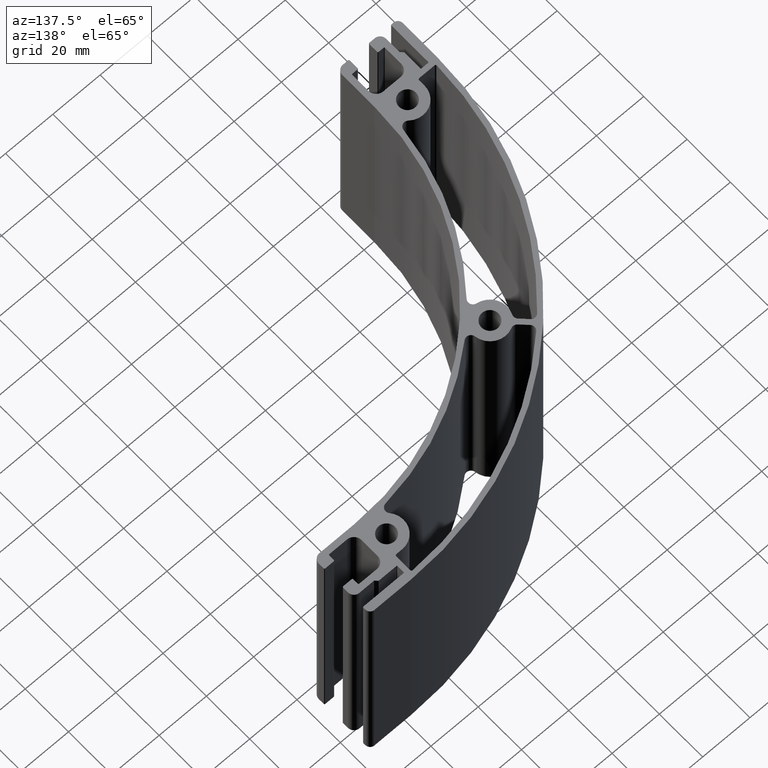
[diagram: clean part render]
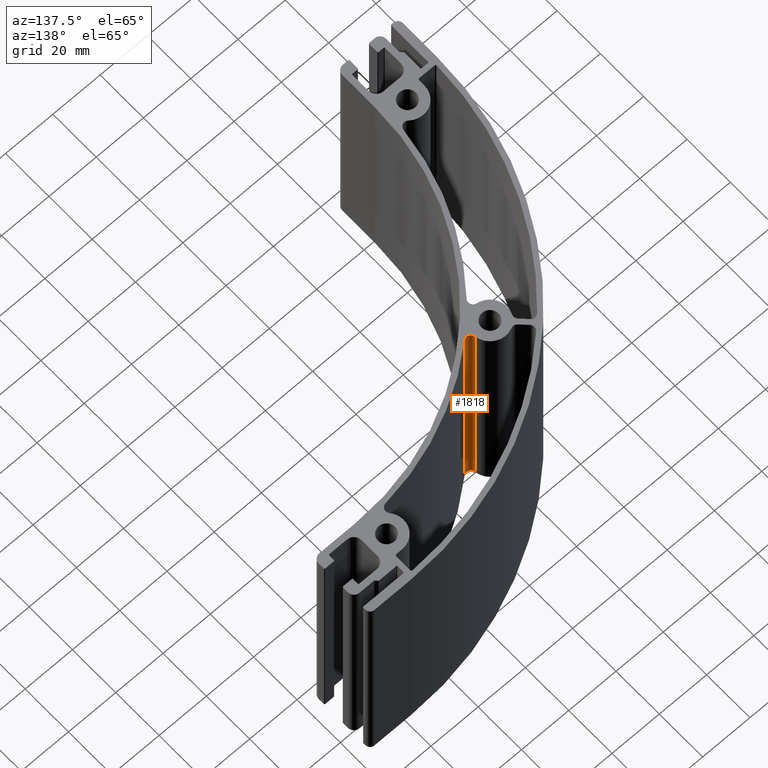
[diagram: same view with one face highlighted and labeled with its STEP entity id]
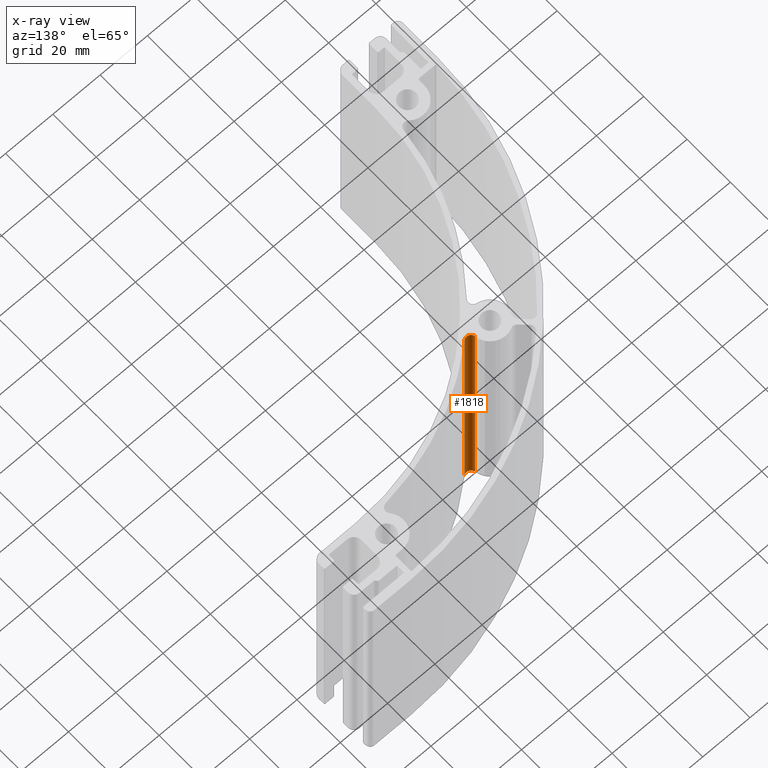
[diagram: x-ray of the same camera — body ghosted, the highlighted face saturated]
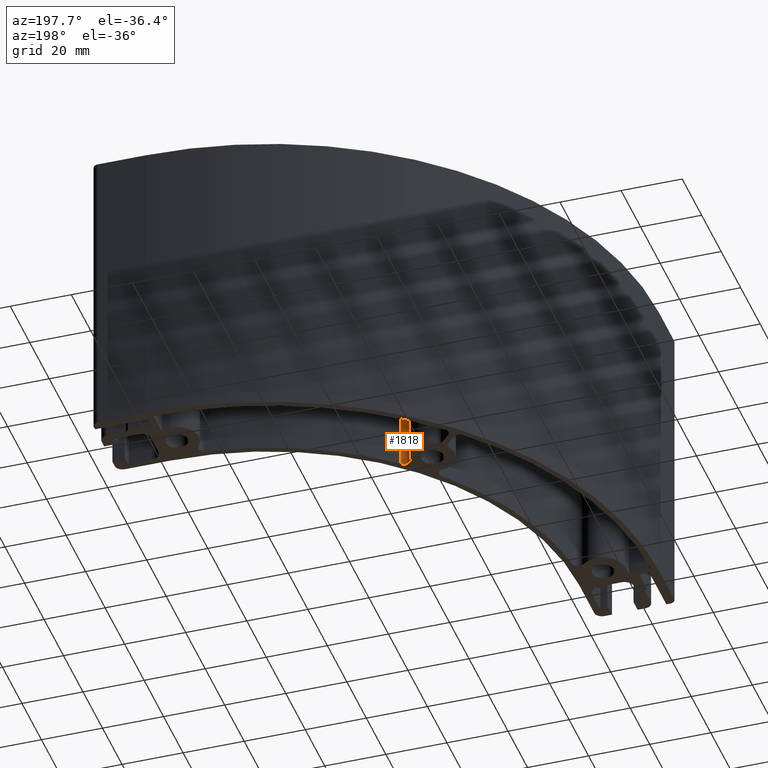
[diagram: same view with one face highlighted and labeled with its STEP entity id]
A machine part, auxiliary view. The second image highlights one B-rep face of the part: STEP entity #1818.
The next image is the same camera in x-ray: the body ghosted, the highlighted face saturated — about 0% of this face is hidden behind the body in this view.
A second angle (auxiliary view) of the same face is appended — the face is thin or edge-on in the first view.
In plain terms, the highlighted cylindrical surface (edge-blend (fillet) strip) has radius 2 mm, axis along (0, 0, 1).
Its self-contained STEP definition (entity closure, byte-faithful):
#90=FACE_OUTER_BOUND('',#185,.T.);
#185=EDGE_LOOP('',(#1276,#1277,#1278,#1279));
#302=LINE('',#2828,#475);
#303=LINE('',#2834,#476);
#475=VECTOR('',#2260,10.);
#476=VECTOR('',#2267,10.);
#647=CIRCLE('',#1968,2.);
#648=CIRCLE('',#1969,2.);
#765=VERTEX_POINT('',#2825);
#766=VERTEX_POINT('',#2827);
#767=VERTEX_POINT('',#2831);
#768=VERTEX_POINT('',#2833);
#973=EDGE_CURVE('',#765,#766,#302,.T.);
#975=EDGE_CURVE('',#767,#765,#647,.T.);
#976=EDGE_CURVE('',#767,#768,#303,.T.);
#977=EDGE_CURVE('',#766,#768,#648,.T.);
#1276=ORIENTED_EDGE('',*,*,#975,.F.);
#1277=ORIENTED_EDGE('',*,*,#976,.T.);
#1278=ORIENTED_EDGE('',*,*,#977,.F.);
#1279=ORIENTED_EDGE('',*,*,#973,.F.);
#1759=CYLINDRICAL_SURFACE('',#1967,2.);
#1818=ADVANCED_FACE('',(#90),#1759,.F.);
#1967=AXIS2_PLACEMENT_3D('',#2830,#2263,#2264);
#1968=AXIS2_PLACEMENT_3D('',#2832,#2265,#2266);
#1969=AXIS2_PLACEMENT_3D('',#2835,#2268,#2269);
#2260=DIRECTION('',(0.,0.,1.));
#2263=DIRECTION('center_axis',(0.,0.,1.));
#2264=DIRECTION('ref_axis',(-0.991697618030269,-0.128591735321875,0.));
#2265=DIRECTION('center_axis',(0.,0.,1.));
#2266=DIRECTION('ref_axis',(-0.991697618030269,-0.128591735321875,0.));
#2267=DIRECTION('',(0.,0.,1.));
#2268=DIRECTION('center_axis',(0.,0.,-1.));
#2269=DIRECTION('ref_axis',(-0.991697618030269,-0.128591735321875,0.));
#2825=CARTESIAN_POINT('',(10.436759814723,-0.325484722193021,0.));
#2827=CARTESIAN_POINT('',(10.436759814723,-0.325484722193021,100.));
#2828=CARTESIAN_POINT('',(10.436759814723,-0.325484722193021,0.));
#2830=CARTESIAN_POINT('Origin',(9.12361808587849,1.18304396496123,0.));
#2831=CARTESIAN_POINT('',(7.14022284981795,0.925860494317479,0.));
#2832=CARTESIAN_POINT('Origin',(9.12361808587849,1.18304396496123,0.));
#2833=CARTESIAN_POINT('',(7.14022284981795,0.925860494317479,100.));
#2834=CARTESIAN_POINT('',(7.14022284981795,0.925860494317479,0.));
#2835=CARTESIAN_POINT('Origin',(9.12361808587849,1.18304396496123,100.));